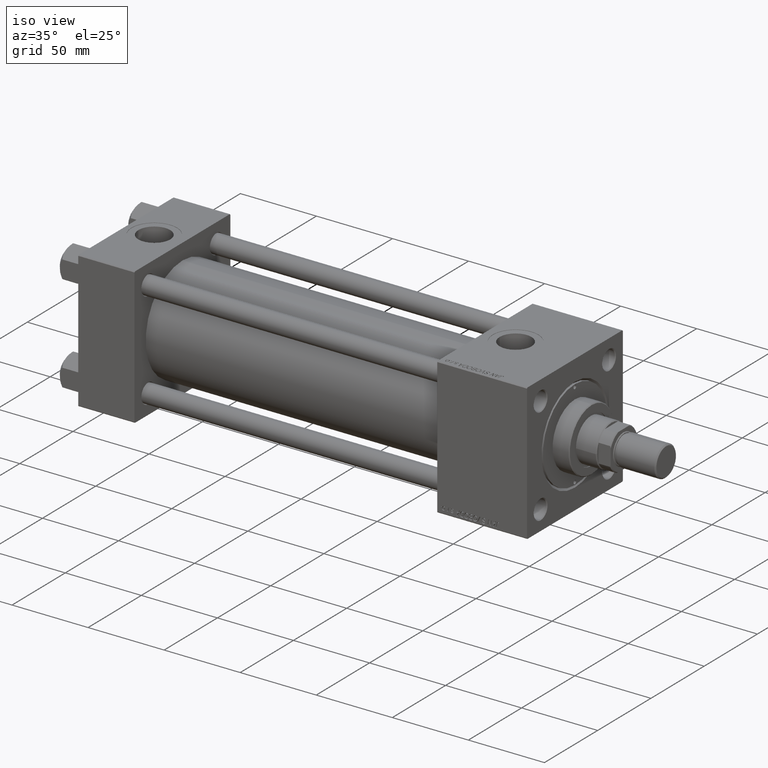
[diagram: clean part render]
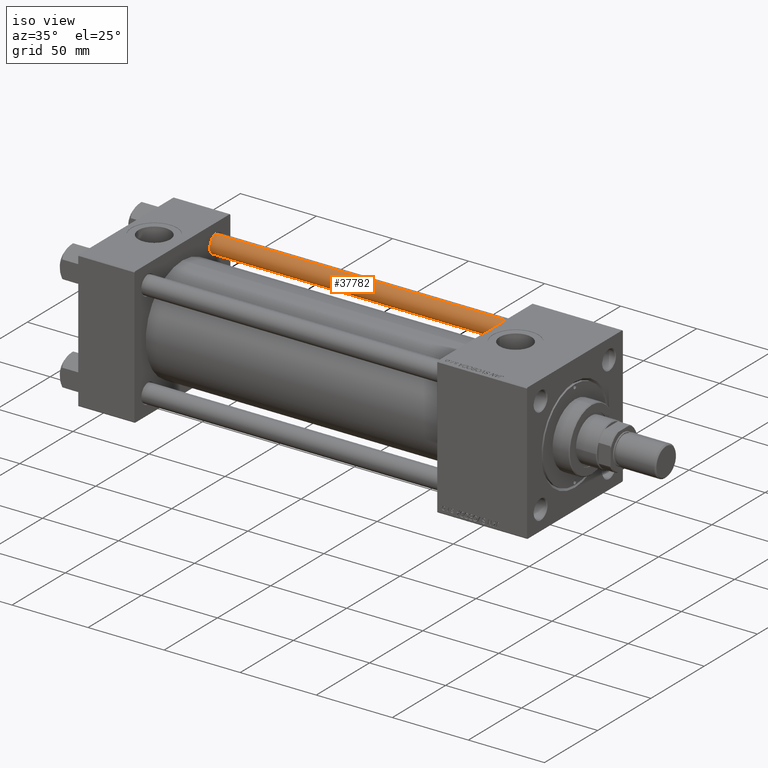
[diagram: same view with one face highlighted and labeled with its STEP entity id]
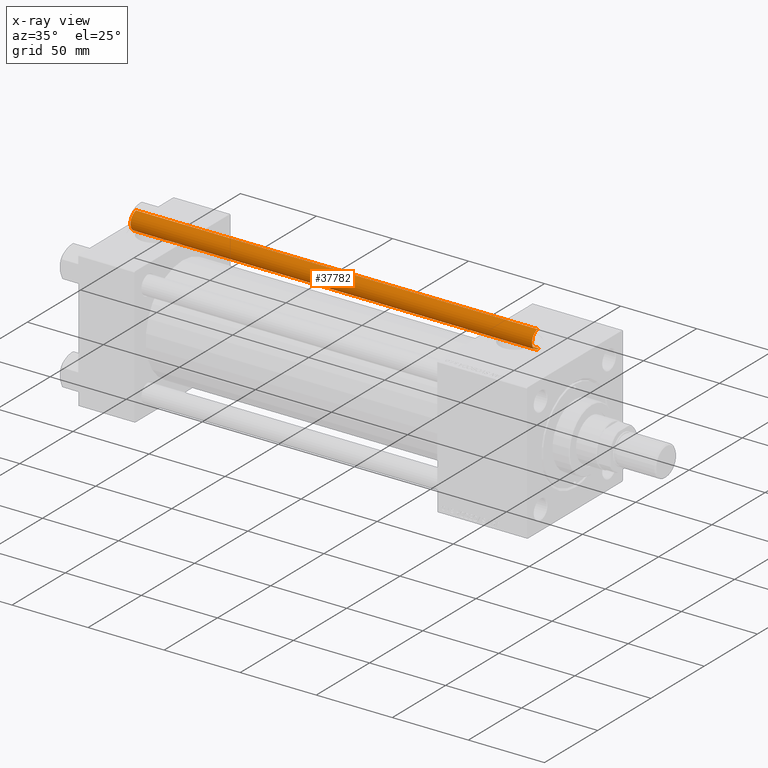
[diagram: x-ray of the same camera — body ghosted, the highlighted face saturated]
A machine part, iso view. The second image highlights one B-rep face of the part: STEP entity #37782.
The next image is the same camera in x-ray: the body ghosted, the highlighted face saturated — about 0% of this face is hidden behind the body in this view.
In plain terms, the highlighted cylindrical surface (edge-blend (fillet) strip) has radius 6 mm, axis along (-1, 0, 0).
Its self-contained STEP definition (entity closure, byte-faithful):
#1152 = CIRCLE ( 'NONE', #37909, 6.000000000000000888 ) ;
#4139 = VERTEX_POINT ( 'NONE', #10255 ) ;
#5467 = AXIS2_PLACEMENT_3D ( 'NONE', #5673, #21980, #38328 ) ;
#5673 = CARTESIAN_POINT ( 'NONE',  ( 0.000000000000000000, 0.000000000000000000, 265.0000000000000000 ) ) ;
#6261 = CIRCLE ( 'NONE', #27666, 6.000000000000000888 ) ;
#7424 = CARTESIAN_POINT ( 'NONE',  ( 0.000000000000000000, 0.000000000000000000, 0.5000000000000004441 ) ) ;
#7658 = CARTESIAN_POINT ( 'NONE',  ( -6.000000000000000888, 0.000000000000000000, 0.5000000000000004441 ) ) ;
#9387 = ORIENTED_EDGE ( 'NONE', *, *, #48728, .F. ) ;
#9958 = CARTESIAN_POINT ( 'NONE',  ( 6.000000000000000888, 7.347880794884120722E-16, 0.5000000000000004441 ) ) ;
#10227 = CARTESIAN_POINT ( 'NONE',  ( 6.000000000000000888, 7.347880794884120722E-16, 265.0000000000000000 ) ) ;
#10233 = VERTEX_POINT ( 'NONE', #48792 ) ;
#10255 = CARTESIAN_POINT ( 'NONE',  ( 6.000000000000000888, 7.347880794884120722E-16, 264.5000000000000000 ) ) ;
#10591 = ORIENTED_EDGE ( 'NONE', *, *, #52734, .T. ) ;
#12567 = DIRECTION ( 'NONE',  ( 0.000000000000000000, 0.000000000000000000, -1.000000000000000000 ) ) ;
#14144 = EDGE_CURVE ( 'NONE', #4139, #10233, #6261, .T. ) ;
#16839 = DIRECTION ( 'NONE',  ( 1.000000000000000000, 0.000000000000000000, 0.000000000000000000 ) ) ;
#18234 = DIRECTION ( 'NONE',  ( -0.000000000000000000, -0.000000000000000000, -1.000000000000000000 ) ) ;
#21914 = DIRECTION ( 'NONE',  ( -0.000000000000000000, -0.000000000000000000, -1.000000000000000000 ) ) ;
#21980 = DIRECTION ( 'NONE',  ( -0.000000000000000000, -0.000000000000000000, -1.000000000000000000 ) ) ;
#26239 = VECTOR ( 'NONE', #18234, 1000.000000000000000 ) ;
#27666 = AXIS2_PLACEMENT_3D ( 'NONE', #36924, #12567, #16839 ) ;
#31043 = VERTEX_POINT ( 'NONE', #7658 ) ;
#32548 = DIRECTION ( 'NONE',  ( 1.000000000000000000, 0.000000000000000000, 0.000000000000000000 ) ) ;
#34805 = EDGE_LOOP ( 'NONE', ( #9387, #47213, #10591, #52322 ) ) ;
#36063 = DIRECTION ( 'NONE',  ( -0.000000000000000000, -0.000000000000000000, 1.000000000000000000 ) ) ;
#36924 = CARTESIAN_POINT ( 'NONE',  ( 0.000000000000000000, 0.000000000000000000, 264.5000000000000000 ) ) ;
#37782 = ADVANCED_FACE ( 'NONE', ( #46358 ), #42332, .T. ) ;
#37909 = AXIS2_PLACEMENT_3D ( 'NONE', #7424, #36063, #32548 ) ;
#38328 = DIRECTION ( 'NONE',  ( -1.000000000000000000, 0.000000000000000000, 0.000000000000000000 ) ) ;
#40632 = EDGE_CURVE ( 'NONE', #31043, #45896, #1152, .T. ) ;
#42332 = CYLINDRICAL_SURFACE ( 'NONE', #5467, 6.000000000000000888 ) ;
#42519 = VECTOR ( 'NONE', #21914, 1000.000000000000000 ) ;
#45498 = LINE ( 'NONE', #45774, #42519 ) ;
#45774 = CARTESIAN_POINT ( 'NONE',  ( -6.000000000000000888, 0.000000000000000000, 265.0000000000000000 ) ) ;
#45896 = VERTEX_POINT ( 'NONE', #9958 ) ;
#46358 = FACE_OUTER_BOUND ( 'NONE', #34805, .T. ) ;
#46909 = LINE ( 'NONE', #10227, #26239 ) ;
#47213 = ORIENTED_EDGE ( 'NONE', *, *, #14144, .T. ) ;
#48728 = EDGE_CURVE ( 'NONE', #4139, #45896, #46909, .T. ) ;
#48792 = CARTESIAN_POINT ( 'NONE',  ( -6.000000000000000888, 0.000000000000000000, 264.5000000000000000 ) ) ;
#52322 = ORIENTED_EDGE ( 'NONE', *, *, #40632, .T. ) ;
#52734 = EDGE_CURVE ( 'NONE', #10233, #31043, #45498, .T. ) ;